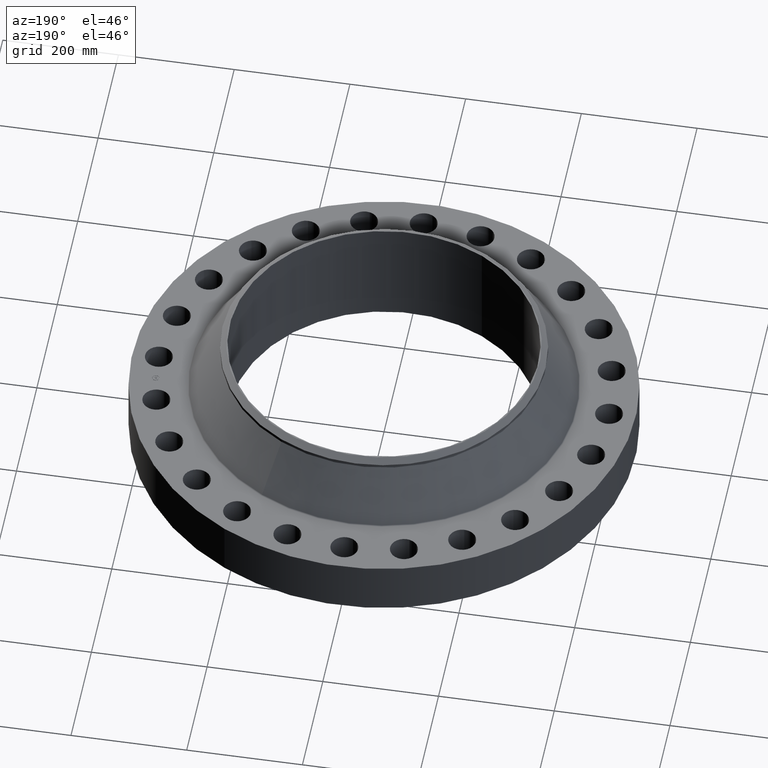
[diagram: clean part render]
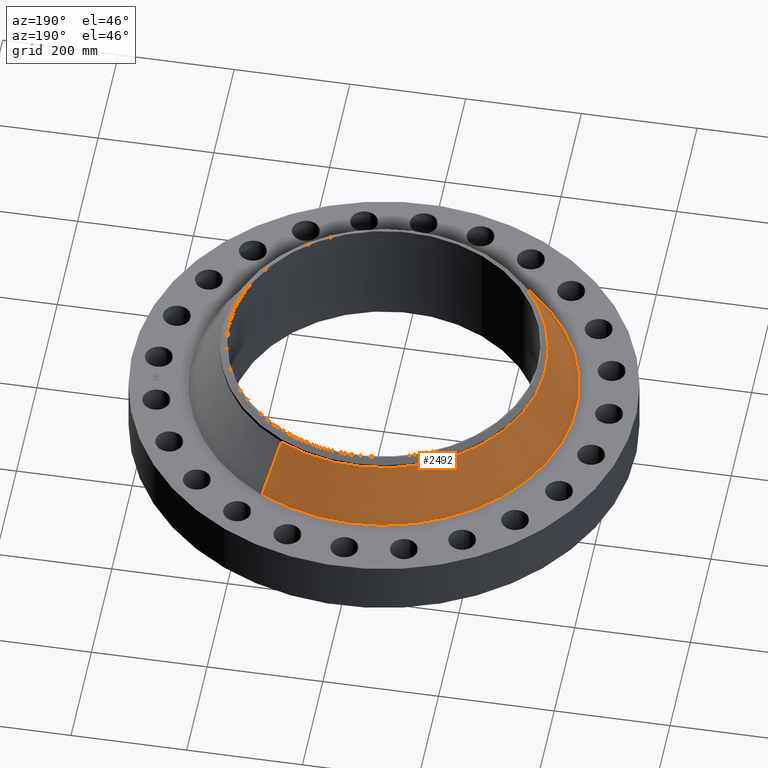
[diagram: same view with one face highlighted and labeled with its STEP entity id]
A machine part, auxiliary view. The second image highlights one B-rep face of the part: STEP entity #2492.
In plain terms, the highlighted conical surface has half-angle 31.701 deg.
Its self-contained STEP definition (entity closure, byte-faithful):
#2304=AXIS2_PLACEMENT_3D('Circle Axis2P3D',#2302,#2303,$) ;
#2465=AXIS2_PLACEMENT_3D('Cone Axis2P3D',#2462,#2463,#2464) ;
#2476=AXIS2_PLACEMENT_3D('Circle Axis2P3D',#2474,#2475,$) ;
#2299=CARTESIAN_POINT('Vertex',(-6.2755991667,-11.487407221,3.80694164096)) ;
#2302=CARTESIAN_POINT('Axis2P3D Location',(0.,0.,3.80694164094)) ;
#2306=CARTESIAN_POINT('Vertex',(6.27559916672,11.487407221,3.80694164094)) ;
#2462=CARTESIAN_POINT('Axis2P3D Location',(0.,0.,7.19053548147)) ;
#2467=CARTESIAN_POINT('Line Origine',(-5.77464004567,-10.5704077009,5.4987385612)) ;
#2471=CARTESIAN_POINT('Vertex',(-5.27368092465,-9.65340818079,7.19053548147)) ;
#2474=CARTESIAN_POINT('Axis2P3D Location',(0.,0.,7.19053548147)) ;
#2478=CARTESIAN_POINT('Vertex',(5.27368092466,9.6534081808,7.19053548145)) ;
#2481=CARTESIAN_POINT('Line Origine',(5.77464004567,10.5704077009,5.4987385612)) ;
#2303=DIRECTION('Axis2P3D Direction',(-0.,0.,-0.0393700787402)) ;
#2463=DIRECTION('Axis2P3D Direction',(0.,0.,-0.0393700787402)) ;
#2464=DIRECTION('Axis2P3D XDirection',(-0.0188750212049,-0.0345504945626,0.)) ;
#2468=DIRECTION('Vector Direction',(-0.00991856553729,-0.018155812433,-0.033496143548)) ;
#2475=DIRECTION('Axis2P3D Direction',(-0.,0.,-0.0393700787402)) ;
#2482=DIRECTION('Vector Direction',(0.00991856553729,0.018155812433,-0.033496143548)) ;
#2469=VECTOR('Line Direction',#2468,0.0393700787402) ;
#2483=VECTOR('Line Direction',#2482,0.0393700787402) ;
#2487=ORIENTED_EDGE('',*,*,#2308,.F.) ;
#2488=ORIENTED_EDGE('',*,*,#2473,.T.) ;
#2489=ORIENTED_EDGE('',*,*,#2480,.T.) ;
#2490=ORIENTED_EDGE('',*,*,#2485,.F.) ;
#2492=ADVANCED_FACE('PartBody',(#2491),#2466,.T.) ;
#2305=CIRCLE('generated circle',#2304,13.0898307691) ;
#2477=CIRCLE('generated circle',#2476,11.) ;
#2466=CONICAL_SURFACE('Cone',#2465,11.,0.553286620585) ;
#2308=EDGE_CURVE('',#2300,#2307,#2305,.T.) ;
#2473=EDGE_CURVE('',#2300,#2472,#2470,.F.) ;
#2480=EDGE_CURVE('',#2472,#2479,#2477,.T.) ;
#2485=EDGE_CURVE('',#2307,#2479,#2484,.F.) ;
#2486=EDGE_LOOP('',(#2487,#2488,#2489,#2490)) ;
#2491=FACE_OUTER_BOUND('',#2486,.T.) ;
#2470=LINE('Line',#2467,#2469) ;
#2484=LINE('Line',#2481,#2483) ;
#2300=VERTEX_POINT('',#2299) ;
#2307=VERTEX_POINT('',#2306) ;
#2472=VERTEX_POINT('',#2471) ;
#2479=VERTEX_POINT('',#2478) ;